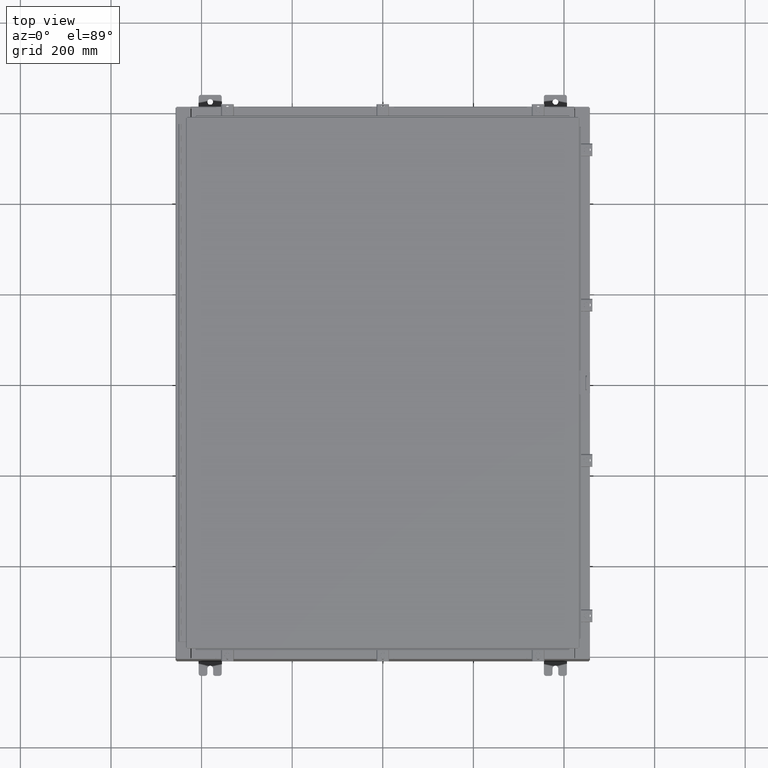
[diagram: clean part render]
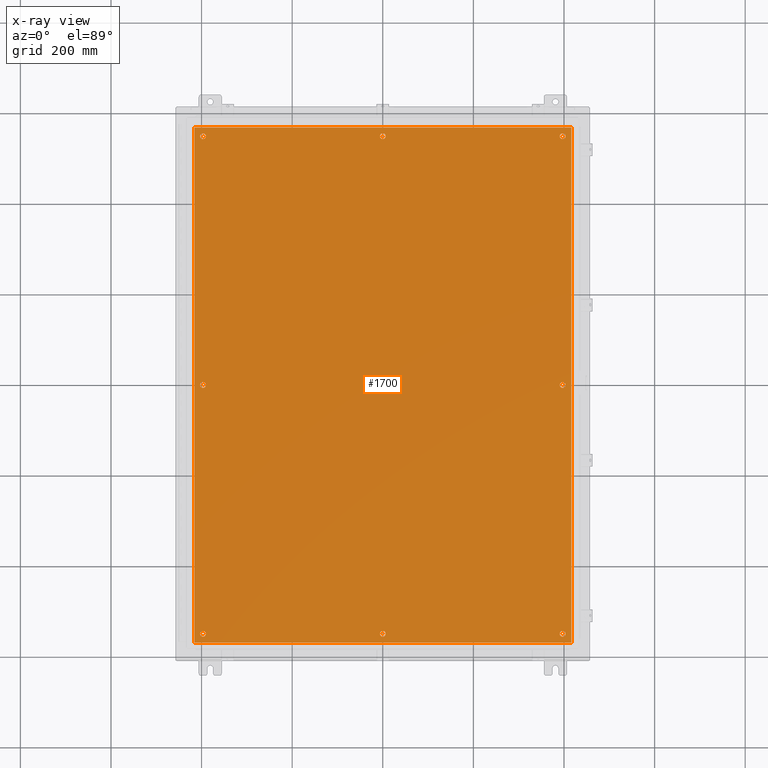
[diagram: x-ray — body ghosted, one internal face saturated and labeled with its STEP entity id]
A machine part, top view, then the same camera in x-ray: the body is ghosted and one INTERNAL B-rep face — a face not visible from any outside direction — is saturated and labeled: STEP entity #1700.
In plain terms, the highlighted planar face has unit normal (0, 0, -1).
Its self-contained STEP definition (entity closure, byte-faithful):
#234 = DIRECTION ( 'NONE',  ( -0.0000000000000000000, -0.0000000000000000000, 1.000000000000000000 ) ) ;
#394 = DIRECTION ( 'NONE',  ( -0.0000000000000000000, -0.0000000000000000000, 1.000000000000000000 ) ) ;
#483 = ORIENTED_EDGE ( 'NONE', *, *, #43370, .T. ) ;
#605 = AXIS2_PLACEMENT_3D ( 'NONE', #36353, #10774, #40649 ) ;
#738 = FACE_OUTER_BOUND ( 'NONE', #44108, .T. ) ;
#979 = ORIENTED_EDGE ( 'NONE', *, *, #28406, .T. ) ;
#1252 = CIRCLE ( 'NONE', #18875, 0.2500000000000008900 ) ;
#1617 = CIRCLE ( 'NONE', #5418, 0.2499999999999987000 ) ;
#1700 = ADVANCED_FACE ( 'NONE', ( #18849, #36188, #2092, #24823, #46196, #34859, #23500, #12131, #738 ), #53557, .T. ) ;
#1988 = DIRECTION ( 'NONE',  ( -0.0000000000000000000, -0.0000000000000000000, 1.000000000000000000 ) ) ;
#2092 = FACE_BOUND ( 'NONE', #24406, .T. ) ;
#2194 = EDGE_CURVE ( 'NONE', #31619, #31355, #16105, .T. ) ;
#2331 = CARTESIAN_POINT ( 'NONE',  ( 0.0000000000000000000, -21.62500000000000400, -0.1040000000000000400 ) ) ;
#2424 = DIRECTION ( 'NONE',  ( 0.0000000000000000000, 0.0000000000000000000, -1.000000000000000000 ) ) ;
#2667 = VERTEX_POINT ( 'NONE', #37594 ) ;
#2789 = VERTEX_POINT ( 'NONE', #12933 ) ;
#2809 = CIRCLE ( 'NONE', #34190, 0.2500000000000008900 ) ;
#3052 = DIRECTION ( 'NONE',  ( -1.000000000000000000, 0.0000000000000000000, 0.0000000000000000000 ) ) ;
#3102 = ORIENTED_EDGE ( 'NONE', *, *, #22400, .T. ) ;
#3749 = DIRECTION ( 'NONE',  ( -1.000000000000000000, 0.0000000000000000000, 0.0000000000000000000 ) ) ;
#3815 = EDGE_LOOP ( 'NONE', ( #34842, #43046 ) ) ;
#5418 = AXIS2_PLACEMENT_3D ( 'NONE', #27608, #1988, #31891 ) ;
#6442 = AXIS2_PLACEMENT_3D ( 'NONE', #22854, #52696, #27149 ) ;
#6495 = CIRCLE ( 'NONE', #28654, 0.2499999999999998600 ) ;
#6581 = EDGE_LOOP ( 'NONE', ( #30604, #33262 ) ) ;
#6637 = DIRECTION ( 'NONE',  ( -1.000000000000000000, 0.0000000000000000000, 0.0000000000000000000 ) ) ;
#6659 = AXIS2_PLACEMENT_3D ( 'NONE', #54877, #29352, #3749 ) ;
#6663 = CARTESIAN_POINT ( 'NONE',  ( -0.2500000000000011700, -21.62500000000000400, -0.1040000000000000400 ) ) ;
#7071 = CARTESIAN_POINT ( 'NONE',  ( -15.62500000000000200, -8.298848852119578500E-016, -0.1040000000000000400 ) ) ;
#7548 = CARTESIAN_POINT ( 'NONE',  ( -0.2499999999999998600, 21.62500000000000400, -0.1040000000000000400 ) ) ;
#7807 = VERTEX_POINT ( 'NONE', #39326 ) ;
#8210 = CIRCLE ( 'NONE', #6442, 0.2500000000000008900 ) ;
#8335 = VERTEX_POINT ( 'NONE', #34407 ) ;
#8433 = ORIENTED_EDGE ( 'NONE', *, *, #28410, .T. ) ;
#9092 = VECTOR ( 'NONE', #30899, 39.37007874015748100 ) ;
#9788 = EDGE_LOOP ( 'NONE', ( #8433, #34956 ) ) ;
#9838 = AXIS2_PLACEMENT_3D ( 'NONE', #26003, #394, #30308 ) ;
#10038 = CARTESIAN_POINT ( 'NONE',  ( 15.87500000000000200, 2.997136362123521200E-015, -0.1040000000000000400 ) ) ;
#10774 = DIRECTION ( 'NONE',  ( -0.0000000000000000000, -0.0000000000000000000, 1.000000000000000000 ) ) ;
#11072 = CARTESIAN_POINT ( 'NONE',  ( -15.37500000000000000, -8.298848852119578500E-016, -0.1040000000000000400 ) ) ;
#11140 = AXIS2_PLACEMENT_3D ( 'NONE', #49039, #23485, #53312 ) ;
#11376 = DIRECTION ( 'NONE',  ( -1.000000000000000000, 0.0000000000000000000, 0.0000000000000000000 ) ) ;
#11433 = EDGE_CURVE ( 'NONE', #41743, #42569, #1252, .T. ) ;
#11510 = ORIENTED_EDGE ( 'NONE', *, *, #35652, .F. ) ;
#11690 = ORIENTED_EDGE ( 'NONE', *, *, #33042, .F. ) ;
#11972 = DIRECTION ( 'NONE',  ( 0.0000000000000000000, 1.000000000000000000, 0.0000000000000000000 ) ) ;
#11986 = CARTESIAN_POINT ( 'NONE',  ( 15.87500000000000200, 21.62500000000000400, -0.1040000000000000400 ) ) ;
#12131 = FACE_BOUND ( 'NONE', #3815, .T. ) ;
#12567 = EDGE_LOOP ( 'NONE', ( #26939, #34988 ) ) ;
#12789 = CARTESIAN_POINT ( 'NONE',  ( 15.62500000000000200, 2.997136362123521200E-015, -0.1040000000000000400 ) ) ;
#12888 = CARTESIAN_POINT ( 'NONE',  ( -15.37500000000000500, 21.62500000000000400, -0.1040000000000000400 ) ) ;
#12933 = CARTESIAN_POINT ( 'NONE',  ( 15.37500000000000500, -21.62500000000000400, -0.1040000000000000400 ) ) ;
#14355 = VECTOR ( 'NONE', #15482, 39.37007874015748100 ) ;
#14870 = CARTESIAN_POINT ( 'NONE',  ( -16.49999999999999600, -22.38300000000000300, -0.1040000000000009900 ) ) ;
#14891 = CARTESIAN_POINT ( 'NONE',  ( 0.0000000000000000000, -21.62500000000000400, -0.1040000000000000400 ) ) ;
#15273 = CIRCLE ( 'NONE', #38695, 0.2500000000000011700 ) ;
#15482 = DIRECTION ( 'NONE',  ( 0.0000000000000000000, -1.000000000000000000, 0.0000000000000000000 ) ) ;
#16105 = CIRCLE ( 'NONE', #6659, 0.2500000000000008900 ) ;
#16306 = VERTEX_POINT ( 'NONE', #25815 ) ;
#16682 = CIRCLE ( 'NONE', #605, 0.2499999999999987000 ) ;
#17084 = DIRECTION ( 'NONE',  ( -1.000000000000000000, 0.0000000000000000000, 0.0000000000000000000 ) ) ;
#17204 = VECTOR ( 'NONE', #11972, 39.37007874015748100 ) ;
#17709 = CARTESIAN_POINT ( 'NONE',  ( -15.87500000000000200, -7.992687152332741600E-016, -0.1040000000000000400 ) ) ;
#18024 = CARTESIAN_POINT ( 'NONE',  ( 16.50000000000000700, 22.38300000000000300, -0.1040000000000009900 ) ) ;
#18103 = DIRECTION ( 'NONE',  ( -0.0000000000000000000, -0.0000000000000000000, 1.000000000000000000 ) ) ;
#18177 = CARTESIAN_POINT ( 'NONE',  ( 0.0000000000000000000, 21.62500000000000400, -0.1040000000000000400 ) ) ;
#18849 = FACE_BOUND ( 'NONE', #12567, .T. ) ;
#18875 = AXIS2_PLACEMENT_3D ( 'NONE', #7071, #36971, #11376 ) ;
#19057 = LINE ( 'NONE', #14870, #49083 ) ;
#19207 = DIRECTION ( 'NONE',  ( -1.000000000000000000, 0.0000000000000000000, 0.0000000000000000000 ) ) ;
#19542 = AXIS2_PLACEMENT_3D ( 'NONE', #2331, #32244, #6637 ) ;
#21732 = VERTEX_POINT ( 'NONE', #26303 ) ;
#21736 = DIRECTION ( 'NONE',  ( -0.0000000000000000000, -0.0000000000000000000, 1.000000000000000000 ) ) ;
#22271 = ORIENTED_EDGE ( 'NONE', *, *, #49722, .T. ) ;
#22400 = EDGE_CURVE ( 'NONE', #16306, #26968, #26786, .T. ) ;
#22444 = EDGE_LOOP ( 'NONE', ( #51839, #25522 ) ) ;
#22447 = DIRECTION ( 'NONE',  ( -1.000000000000000000, 0.0000000000000000000, 0.0000000000000000000 ) ) ;
#22854 = CARTESIAN_POINT ( 'NONE',  ( -15.62500000000000500, 21.62500000000000400, -0.1040000000000000400 ) ) ;
#23218 = EDGE_CURVE ( 'NONE', #8335, #41188, #34731, .T. ) ;
#23485 = DIRECTION ( 'NONE',  ( -0.0000000000000000000, -0.0000000000000000000, 1.000000000000000000 ) ) ;
#23500 = FACE_BOUND ( 'NONE', #28010, .T. ) ;
#24026 = ORIENTED_EDGE ( 'NONE', *, *, #27076, .F. ) ;
#24197 = AXIS2_PLACEMENT_3D ( 'NONE', #25851, #234, #30167 ) ;
#24406 = EDGE_LOOP ( 'NONE', ( #22271, #3102 ) ) ;
#24823 = FACE_BOUND ( 'NONE', #9788, .T. ) ;
#25047 = CARTESIAN_POINT ( 'NONE',  ( 0.2500000000000011700, -21.62500000000000400, -0.1040000000000000400 ) ) ;
#25164 = DIRECTION ( 'NONE',  ( -0.0000000000000000000, -0.0000000000000000000, 1.000000000000000000 ) ) ;
#25522 = ORIENTED_EDGE ( 'NONE', *, *, #42225, .T. ) ;
#25718 = LINE ( 'NONE', #32485, #14355 ) ;
#25815 = CARTESIAN_POINT ( 'NONE',  ( 15.37500000000000000, 3.027752532102204900E-015, -0.1040000000000000400 ) ) ;
#25851 = CARTESIAN_POINT ( 'NONE',  ( 0.0000000000000000000, 21.62500000000000400, -0.1040000000000000400 ) ) ;
#26003 = CARTESIAN_POINT ( 'NONE',  ( 15.62500000000000200, 2.997136362123521200E-015, -0.1040000000000000400 ) ) ;
#26116 = VERTEX_POINT ( 'NONE', #25047 ) ;
#26303 = CARTESIAN_POINT ( 'NONE',  ( 0.2499999999999998600, 21.62500000000000400, -0.1040000000000000400 ) ) ;
#26786 = CIRCLE ( 'NONE', #9838, 0.2500000000000008900 ) ;
#26939 = ORIENTED_EDGE ( 'NONE', *, *, #54852, .T. ) ;
#26968 = VERTEX_POINT ( 'NONE', #10038 ) ;
#27076 = EDGE_CURVE ( 'NONE', #32212, #39645, #19057, .T. ) ;
#27149 = DIRECTION ( 'NONE',  ( -1.000000000000000000, 0.0000000000000000000, 0.0000000000000000000 ) ) ;
#27247 = CARTESIAN_POINT ( 'NONE',  ( -15.87500000000000700, 21.62500000000000400, -0.1040000000000000400 ) ) ;
#27564 = EDGE_CURVE ( 'NONE', #38149, #27905, #53149, .T. ) ;
#27568 = CIRCLE ( 'NONE', #19542, 0.2500000000000011700 ) ;
#27608 = CARTESIAN_POINT ( 'NONE',  ( 15.62500000000000400, -21.62500000000000400, -0.1040000000000000400 ) ) ;
#27905 = VERTEX_POINT ( 'NONE', #50071 ) ;
#28010 = EDGE_LOOP ( 'NONE', ( #28188, #39478 ) ) ;
#28188 = ORIENTED_EDGE ( 'NONE', *, *, #32574, .T. ) ;
#28406 = EDGE_CURVE ( 'NONE', #2667, #2789, #1617, .T. ) ;
#28410 = EDGE_CURVE ( 'NONE', #42569, #41743, #34384, .T. ) ;
#28654 = AXIS2_PLACEMENT_3D ( 'NONE', #18177, #48015, #22447 ) ;
#28667 = DIRECTION ( 'NONE',  ( -0.0000000000000000000, -0.0000000000000000000, 1.000000000000000000 ) ) ;
#28975 = CIRCLE ( 'NONE', #54770, 0.2499999999999987000 ) ;
#29047 = EDGE_CURVE ( 'NONE', #7807, #42716, #28975, .T. ) ;
#29352 = DIRECTION ( 'NONE',  ( -0.0000000000000000000, -0.0000000000000000000, 1.000000000000000000 ) ) ;
#30165 = VERTEX_POINT ( 'NONE', #6663 ) ;
#30167 = DIRECTION ( 'NONE',  ( -1.000000000000000000, 0.0000000000000000000, 0.0000000000000000000 ) ) ;
#30308 = DIRECTION ( 'NONE',  ( -1.000000000000000000, 0.0000000000000000000, 0.0000000000000000000 ) ) ;
#30604 = ORIENTED_EDGE ( 'NONE', *, *, #23218, .T. ) ;
#30899 = DIRECTION ( 'NONE',  ( -1.000000000000000000, -0.0000000000000000000, -0.0000000000000000000 ) ) ;
#31355 = VERTEX_POINT ( 'NONE', #12888 ) ;
#31619 = VERTEX_POINT ( 'NONE', #27247 ) ;
#31891 = DIRECTION ( 'NONE',  ( -1.000000000000000000, 0.0000000000000000000, 0.0000000000000000000 ) ) ;
#32212 = VERTEX_POINT ( 'NONE', #36146 ) ;
#32244 = DIRECTION ( 'NONE',  ( -0.0000000000000000000, -0.0000000000000000000, 1.000000000000000000 ) ) ;
#32323 = DIRECTION ( 'NONE',  ( -1.000000000000000000, 0.0000000000000000000, -0.0000000000000000000 ) ) ;
#32485 = CARTESIAN_POINT ( 'NONE',  ( -16.38299999999999600, 22.38300000000000300, -0.1040000000000008600 ) ) ;
#32574 = EDGE_CURVE ( 'NONE', #42716, #7807, #38637, .T. ) ;
#33042 = EDGE_CURVE ( 'NONE', #39645, #38149, #37232, .T. ) ;
#33262 = ORIENTED_EDGE ( 'NONE', *, *, #43651, .T. ) ;
#34190 = AXIS2_PLACEMENT_3D ( 'NONE', #12789, #42657, #17084 ) ;
#34384 = CIRCLE ( 'NONE', #11140, 0.2500000000000008900 ) ;
#34407 = CARTESIAN_POINT ( 'NONE',  ( -15.37500000000000500, -21.62500000000000400, -0.1040000000000000400 ) ) ;
#34731 = CIRCLE ( 'NONE', #39215, 0.2499999999999987000 ) ;
#34842 = ORIENTED_EDGE ( 'NONE', *, *, #36984, .T. ) ;
#34859 = FACE_BOUND ( 'NONE', #35625, .T. ) ;
#34956 = ORIENTED_EDGE ( 'NONE', *, *, #11433, .T. ) ;
#34988 = ORIENTED_EDGE ( 'NONE', *, *, #41986, .T. ) ;
#35625 = EDGE_LOOP ( 'NONE', ( #979, #483 ) ) ;
#35652 = EDGE_CURVE ( 'NONE', #27905, #32212, #25718, .T. ) ;
#36146 = CARTESIAN_POINT ( 'NONE',  ( -16.38299999999999600, -22.38300000000000300, -0.1040000000000009900 ) ) ;
#36188 = FACE_BOUND ( 'NONE', #22444, .T. ) ;
#36353 = CARTESIAN_POINT ( 'NONE',  ( -15.62500000000000400, -21.62500000000000400, -0.1040000000000000400 ) ) ;
#36971 = DIRECTION ( 'NONE',  ( -0.0000000000000000000, -0.0000000000000000000, 1.000000000000000000 ) ) ;
#36984 = EDGE_CURVE ( 'NONE', #31355, #31619, #8210, .T. ) ;
#37232 = LINE ( 'NONE', #41856, #17204 ) ;
#37594 = CARTESIAN_POINT ( 'NONE',  ( 15.87500000000000200, -21.62500000000000400, -0.1040000000000000400 ) ) ;
#38149 = VERTEX_POINT ( 'NONE', #46397 ) ;
#38220 = CIRCLE ( 'NONE', #24197, 0.2499999999999998600 ) ;
#38637 = CIRCLE ( 'NONE', #54180, 0.2499999999999987000 ) ;
#38695 = AXIS2_PLACEMENT_3D ( 'NONE', #14891, #44772, #19207 ) ;
#39215 = AXIS2_PLACEMENT_3D ( 'NONE', #43649, #18103, #47928 ) ;
#39326 = CARTESIAN_POINT ( 'NONE',  ( 15.37500000000000500, 21.62500000000000400, -0.1040000000000000400 ) ) ;
#39478 = ORIENTED_EDGE ( 'NONE', *, *, #29047, .T. ) ;
#39645 = VERTEX_POINT ( 'NONE', #47373 ) ;
#40649 = DIRECTION ( 'NONE',  ( -1.000000000000000000, 0.0000000000000000000, 0.0000000000000000000 ) ) ;
#40650 = DIRECTION ( 'NONE',  ( 1.000000000000000000, -0.0000000000000000000, -0.0000000000000000000 ) ) ;
#41188 = VERTEX_POINT ( 'NONE', #54836 ) ;
#41743 = VERTEX_POINT ( 'NONE', #17709 ) ;
#41856 = CARTESIAN_POINT ( 'NONE',  ( 16.38300000000000600, -22.38300000000000300, -0.1040000000000008600 ) ) ;
#41986 = EDGE_CURVE ( 'NONE', #30165, #26116, #27568, .T. ) ;
#42225 = EDGE_CURVE ( 'NONE', #53768, #21732, #38220, .T. ) ;
#42569 = VERTEX_POINT ( 'NONE', #11072 ) ;
#42657 = DIRECTION ( 'NONE',  ( -0.0000000000000000000, -0.0000000000000000000, 1.000000000000000000 ) ) ;
#42716 = VERTEX_POINT ( 'NONE', #11986 ) ;
#43046 = ORIENTED_EDGE ( 'NONE', *, *, #2194, .T. ) ;
#43370 = EDGE_CURVE ( 'NONE', #2789, #2667, #51446, .T. ) ;
#43649 = CARTESIAN_POINT ( 'NONE',  ( -15.62500000000000400, -21.62500000000000400, -0.1040000000000000400 ) ) ;
#43651 = EDGE_CURVE ( 'NONE', #41188, #8335, #16682, .T. ) ;
#44108 = EDGE_LOOP ( 'NONE', ( #24026, #11510, #53191, #11690 ) ) ;
#44772 = DIRECTION ( 'NONE',  ( -0.0000000000000000000, -0.0000000000000000000, 1.000000000000000000 ) ) ;
#44987 = EDGE_CURVE ( 'NONE', #21732, #53768, #6495, .T. ) ;
#46196 = FACE_BOUND ( 'NONE', #6581, .T. ) ;
#46397 = CARTESIAN_POINT ( 'NONE',  ( 16.38300000000000600, 22.38300000000000300, -0.1040000000000008600 ) ) ;
#47292 = CARTESIAN_POINT ( 'NONE',  ( 15.62500000000000400, 21.62500000000000400, -0.1040000000000000400 ) ) ;
#47373 = CARTESIAN_POINT ( 'NONE',  ( 16.38300000000000600, -22.38300000000000300, -0.1040000000000008600 ) ) ;
#47928 = DIRECTION ( 'NONE',  ( -1.000000000000000000, 0.0000000000000000000, 0.0000000000000000000 ) ) ;
#48015 = DIRECTION ( 'NONE',  ( -0.0000000000000000000, -0.0000000000000000000, 1.000000000000000000 ) ) ;
#49039 = CARTESIAN_POINT ( 'NONE',  ( -15.62500000000000200, -8.298848852119578500E-016, -0.1040000000000000400 ) ) ;
#49083 = VECTOR ( 'NONE', #40650, 39.37007874015748100 ) ;
#49283 = CARTESIAN_POINT ( 'NONE',  ( 0.0000000000000000000, 0.0000000000000000000, -0.1040000000000000400 ) ) ;
#49722 = EDGE_CURVE ( 'NONE', #26968, #16306, #2809, .T. ) ;
#50071 = CARTESIAN_POINT ( 'NONE',  ( -16.38299999999999600, 22.38300000000000300, -0.1040000000000008600 ) ) ;
#50389 = AXIS2_PLACEMENT_3D ( 'NONE', #49283, #2424, #32323 ) ;
#50728 = CARTESIAN_POINT ( 'NONE',  ( 15.62500000000000400, -21.62500000000000400, -0.1040000000000000400 ) ) ;
#51416 = AXIS2_PLACEMENT_3D ( 'NONE', #50728, #25164, #55002 ) ;
#51446 = CIRCLE ( 'NONE', #51416, 0.2499999999999987000 ) ;
#51580 = DIRECTION ( 'NONE',  ( -1.000000000000000000, 0.0000000000000000000, 0.0000000000000000000 ) ) ;
#51839 = ORIENTED_EDGE ( 'NONE', *, *, #44987, .T. ) ;
#52696 = DIRECTION ( 'NONE',  ( -0.0000000000000000000, -0.0000000000000000000, 1.000000000000000000 ) ) ;
#53149 = LINE ( 'NONE', #18024, #9092 ) ;
#53191 = ORIENTED_EDGE ( 'NONE', *, *, #27564, .F. ) ;
#53312 = DIRECTION ( 'NONE',  ( -1.000000000000000000, 0.0000000000000000000, 0.0000000000000000000 ) ) ;
#53557 = PLANE ( 'NONE',  #50389 ) ;
#53768 = VERTEX_POINT ( 'NONE', #7548 ) ;
#54178 = CARTESIAN_POINT ( 'NONE',  ( 15.62500000000000400, 21.62500000000000400, -0.1040000000000000400 ) ) ;
#54180 = AXIS2_PLACEMENT_3D ( 'NONE', #47292, #21736, #51580 ) ;
#54770 = AXIS2_PLACEMENT_3D ( 'NONE', #54178, #28667, #3052 ) ;
#54836 = CARTESIAN_POINT ( 'NONE',  ( -15.87500000000000200, -21.62500000000000400, -0.1040000000000000400 ) ) ;
#54852 = EDGE_CURVE ( 'NONE', #26116, #30165, #15273, .T. ) ;
#54877 = CARTESIAN_POINT ( 'NONE',  ( -15.62500000000000500, 21.62500000000000400, -0.1040000000000000400 ) ) ;
#55002 = DIRECTION ( 'NONE',  ( -1.000000000000000000, 0.0000000000000000000, 0.0000000000000000000 ) ) ;